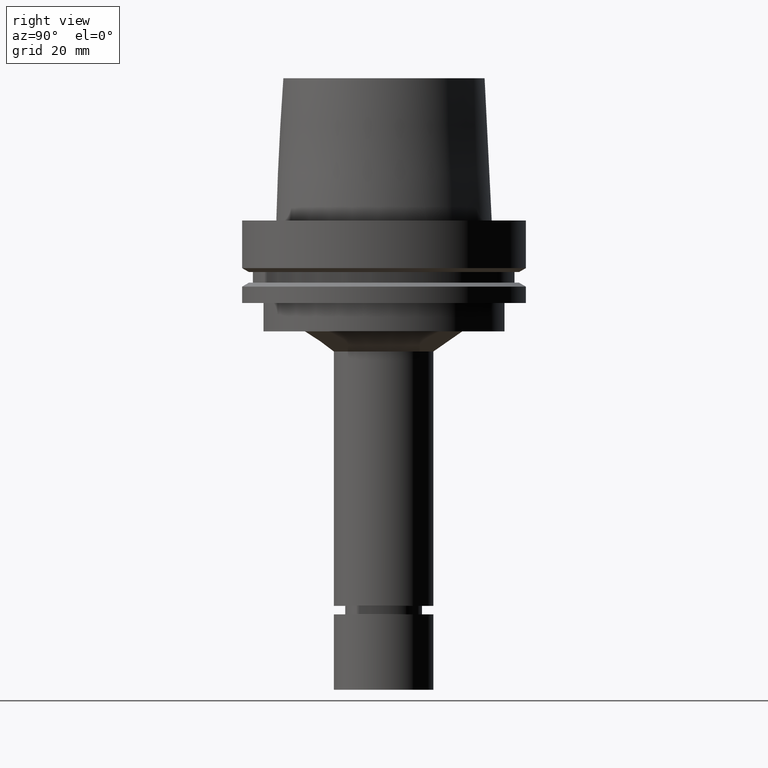
[diagram: clean part render]
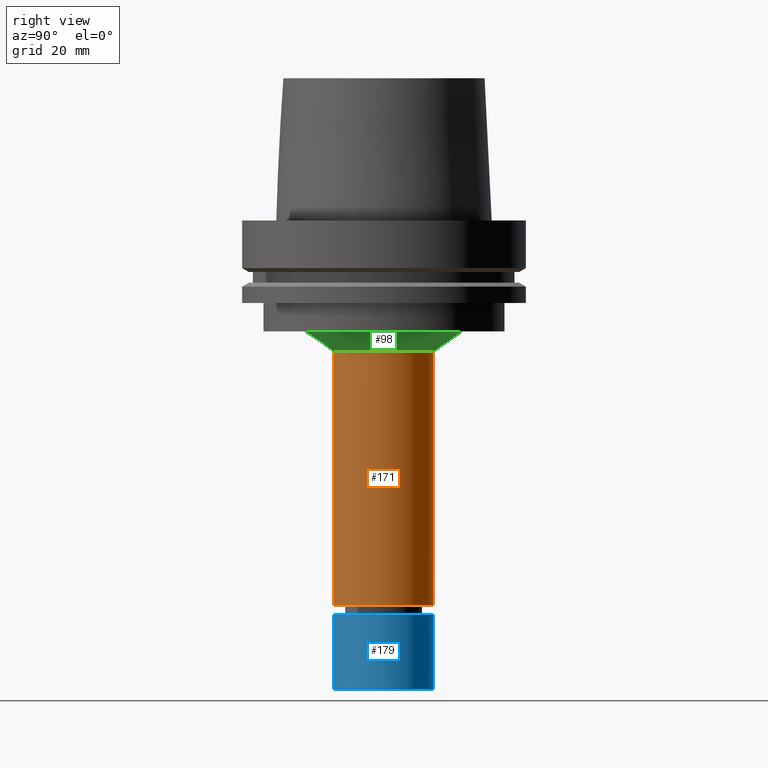
[diagram: same view with three faces highlighted in distinct colors, each labeled with its STEP entity id]
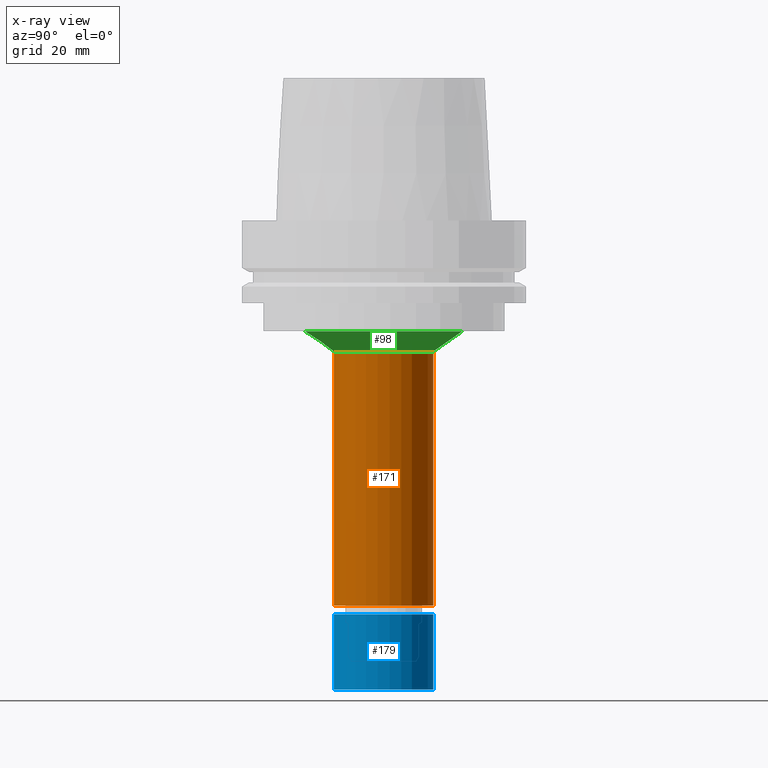
[diagram: x-ray of the same camera — body ghosted, the three highlighted faces saturated]
A machine part, right view with three faces highlighted in distinct colors.
The next image is the same camera in x-ray (body ghosted, the three faces saturated) — at least one of them is partly hidden behind the body in this view.
Their STEP definitions:

[orange] entity #171 — the highlighted cylindrical surface (bore or boss wall) has radius 17.5 mm, axis along (0, 0, -1).
#122=EDGE_CURVE('Unnamed[1]',#284,#284,#285,.T.);
#171=ADVANCED_FACE('Unnamed[1]',(#359,#360),#361,.T.);
#176=EDGE_CURVE('Unnamed[1]',#368,#368,#369,.T.);
#284=VERTEX_POINT('',#498);
#285=CIRCLE('',#499,17.4999999999999);
#359=FACE_BOUND('',#592,.T.);
#360=FACE_BOUND('',#593,.T.);
#361=CYLINDRICAL_SURFACE('',#594,17.4999999999963);
#368=VERTEX_POINT('',#603);
#369=CIRCLE('',#604,17.4999999999926);
#498=CARTESIAN_POINT('',(8.29698206422331E-015,17.4999999999999,-135.5));
#499=AXIS2_PLACEMENT_3D('',#720,#721,#722);
#592=EDGE_LOOP('',(#805));
#593=EDGE_LOOP('',(#806));
#594=AXIS2_PLACEMENT_3D('',#807,#808,#809);
#603=CARTESIAN_POINT('',(2.82064573737402E-015,17.4999999999926,-46.0646406676254));
#604=AXIS2_PLACEMENT_3D('',#816,#817,#818);
#720=CARTESIAN_POINT('',(8.29698206422331E-015,1.65939641284466E-014,-135.5));
#721=DIRECTION('',(6.12323399573677E-017,1.22464679914735E-016,-1.0));
#722=DIRECTION('',(-1.23259516440783E-032,1.0,1.22464679914735E-016));
#805=ORIENTED_EDGE('',*,*,#122,.F.);
#806=ORIENTED_EDGE('',*,*,#176,.T.);
#807=CARTESIAN_POINT('',(5.55881390079866E-015,1.11176278015973E-014,-90.7823203338126));
#808=DIRECTION('',(6.12323399573677E-017,1.22464679914735E-016,-1.0));
#809=DIRECTION('',(-1.23259516440783E-032,1.0,1.22464679914735E-016));
#816=CARTESIAN_POINT('',(2.82064573737402E-015,5.64129147474804E-015,-46.0646406676254));
#817=DIRECTION('',(6.12323399573677E-017,1.22464679914735E-016,-1.0));
#818=DIRECTION('',(-1.23259516440783E-032,1.0,1.22464679914735E-016));

[blue] entity #179 — the highlighted cylindrical surface (bore or boss wall) has radius 17.5 mm, axis along (0, 0, -1).
#120=EDGE_CURVE('Unnamed[1]',#281,#281,#282,.T.);
#152=EDGE_CURVE('Unnamed[1]',#329,#329,#330,.T.);
#179=ADVANCED_FACE('Unnamed[1]',(#372,#373),#374,.T.);
#281=VERTEX_POINT('',#494);
#282=CIRCLE('',#495,17.5);
#329=VERTEX_POINT('',#555);
#330=CIRCLE('',#556,17.5);
#372=FACE_BOUND('',#608,.T.);
#373=FACE_BOUND('',#609,.T.);
#374=CYLINDRICAL_SURFACE('',#610,17.5);
#494=CARTESIAN_POINT('',(1.01033360929657E-014,17.5,-165.0));
#495=AXIS2_PLACEMENT_3D('',#717,#718,#719);
#555=CARTESIAN_POINT('',(8.48068001842678E-015,17.5,-138.500015258789));
#556=AXIS2_PLACEMENT_3D('',#771,#772,#773);
#608=EDGE_LOOP('',(#820));
#609=EDGE_LOOP('',(#821));
#610=AXIS2_PLACEMENT_3D('',#822,#823,#824);
#717=CARTESIAN_POINT('',(1.01033360929657E-014,2.02066721859313E-014,-165.0));
#718=DIRECTION('',(6.12323399573677E-017,1.22464679914735E-016,-1.0));
#719=DIRECTION('',(-1.23259516440783E-032,1.0,1.22464679914735E-016));
#771=CARTESIAN_POINT('',(8.48068001842678E-015,1.69613600368536E-014,-138.500015258789));
#772=DIRECTION('',(6.12323399573677E-017,1.22464679914735E-016,-1.0));
#773=DIRECTION('',(-1.23259516440783E-032,1.0,1.22464679914735E-016));
#820=ORIENTED_EDGE('',*,*,#120,.F.);
#821=ORIENTED_EDGE('',*,*,#152,.T.);
#822=CARTESIAN_POINT('',(9.29200805569622E-015,1.85840161113924E-014,-151.750007629394));
#823=DIRECTION('',(6.12323399573677E-017,1.22464679914735E-016,-1.0));
#824=DIRECTION('',(-1.23259516440783E-032,1.0,1.22464679914735E-016));

[green] entity #98 — the highlighted conical surface has half-angle 55.144 deg.
#98=ADVANCED_FACE('Unnamed[1]',(#249,#250),#251,.T.);
#176=EDGE_CURVE('Unnamed[1]',#368,#368,#369,.T.);
#201=EDGE_CURVE('Unnamed[1]',#407,#407,#408,.T.);
#249=FACE_BOUND('',#455,.T.);
#250=FACE_BOUND('',#456,.T.);
#251=CONICAL_SURFACE('',#457,22.5717863357236,0.962446965226569);
#368=VERTEX_POINT('',#603);
#369=CIRCLE('',#604,17.4999999999926);
#407=VERTEX_POINT('',#652);
#408=CIRCLE('',#653,27.6435726714545);
#455=EDGE_LOOP('',(#686));
#456=EDGE_LOOP('',(#687));
#457=AXIS2_PLACEMENT_3D('',#688,#689,#690);
#603=CARTESIAN_POINT('',(2.82064573737402E-015,17.4999999999926,-46.0646406676254));
#604=AXIS2_PLACEMENT_3D('',#816,#817,#818);
#652=CARTESIAN_POINT('',(2.38806125833734E-015,27.6435726714545,-39.0));
#653=AXIS2_PLACEMENT_3D('',#860,#861,#862);
#686=ORIENTED_EDGE('',*,*,#176,.F.);
#687=ORIENTED_EDGE('',*,*,#201,.T.);
#688=CARTESIAN_POINT('',(2.60435349785568E-015,5.20870699571136E-015,-42.5323203338127));
#689=DIRECTION('',(-6.12323399573677E-017,-1.22464679914735E-016,1.0));
#690=DIRECTION('',(-1.23259516440783E-032,1.0,1.22464679914735E-016));
#816=CARTESIAN_POINT('',(2.82064573737402E-015,5.64129147474804E-015,-46.0646406676254));
#817=DIRECTION('',(6.12323399573677E-017,1.22464679914735E-016,-1.0));
#818=DIRECTION('',(-1.23259516440783E-032,1.0,1.22464679914735E-016));
#860=CARTESIAN_POINT('',(2.38806125833734E-015,4.77612251667468E-015,-39.0));
#861=DIRECTION('',(6.12323399573677E-017,1.22464679914735E-016,-1.0));
#862=DIRECTION('',(-1.23259516440783E-032,1.0,1.22464679914735E-016));